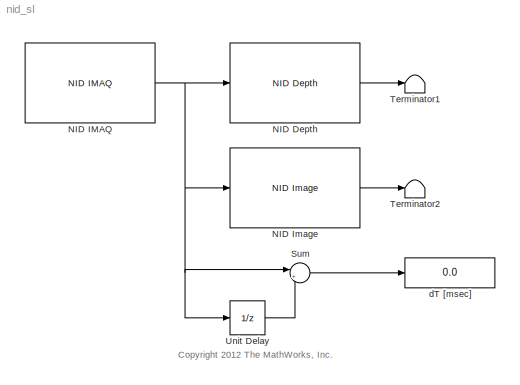
MODEL nid_sl
KIND model
CONFIG StartFcn = h = add_exec_event_listener('nid_sl/NID Image', 'PreOutputs',@Image_out);\n
BLOCK [Reference] NID Depth  REF=nid_lib/NID Depth
  Ports = [1, 1]
  SID = 129
  SourceBlock = nid_lib/NID Depth
  SourceType = NID Depth
  conv_XYZ_RW = off
  depthOutput = Depth
  viewer = off
BLOCK [Reference] NID IMAQ  REF=nid_lib/NID IMAQ
  Ports = [0, 1]
  SID = 130
  SourceBlock = nid_lib/NID IMAQ
  SourceType = NID IMAQ
  angle = 0
  angle_input = off
  angle_read = off
  imaq_depth = on
  imaq_image = on
  imaq_ir = off
  imaq_motion = off
  imaq_sample_time = 1/30
  imaq_skeleton = off
  infer_skeleton = on
  mirror_image = off
  near_mode = off
  needPsiPose = off
  res_fps = VGA (640x480): 30 FPS
  seated_mode = off
  skeleton_smooth = [0.5 0.5 0.5 0.05 0.04]
  view_point = off
BLOCK [Reference] NID Image  REF=nid_lib/NID Image
  Ports = [1, 1]
  SID = 163
  SourceBlock = nid_lib/NID Image
  SourceType = NID Image
  imageOutput = RGB
BLOCK [Sum] Sum
  IconShape = round
  InputSameDT = off
  Inputs = |+-
  OutDataTypeStr = Inherit: Inherit via internal rule
  Ports = [2, 1]
  SID = 73
  SaturateOnIntegerOverflow = off
BLOCK [Terminator] Terminator1
  SID = 147
BLOCK [Terminator] Terminator2
  SID = 143
BLOCK [UnitDelay] Unit Delay
  InputProcessing = Elements as channels (sample based)
  SID = 74
  SampleTime = -1
BLOCK [Display] dT [msec]
  Decimation = 1
  Lockdown = off
  Ports = [1]
  SID = 134
ANNOTATION (root): <copyright redacted>
LINE NID Depth:1 -> Terminator1:1
NET NID IMAQ:1 -> NID Depth:1, NID Image:1, Sum:1, Unit Delay:1
LINE NID Image:1 -> Terminator2:1
LINE Sum:1 -> dT [msec]:1
LINE Unit Delay:1 -> Sum:2
note: NET lines group one-source signal fan-out (src -> all destinations, sorted); 1:1 wires keep LINE
